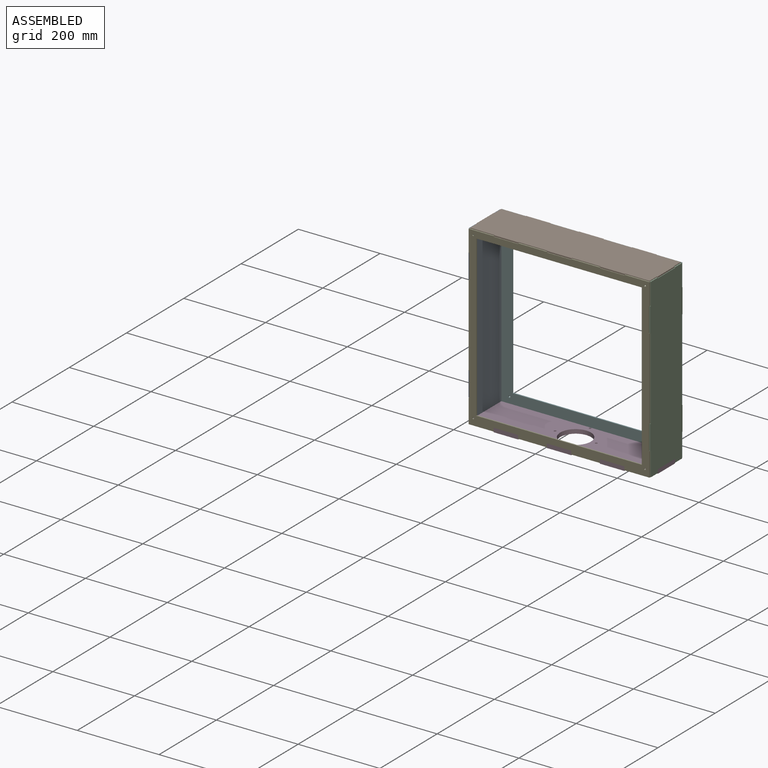
[diagram: assembled view]
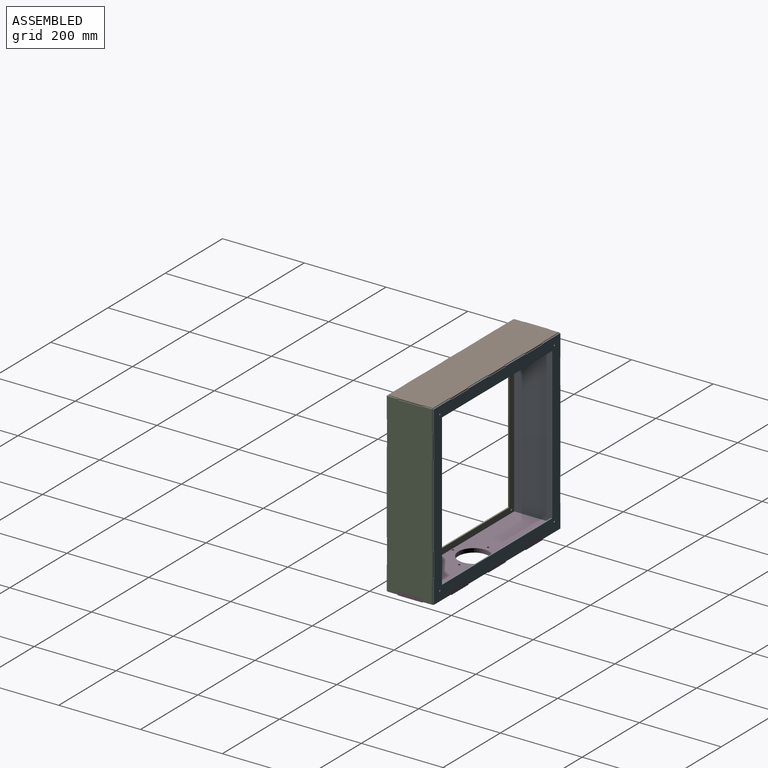
[diagram: assembled view, second angle]
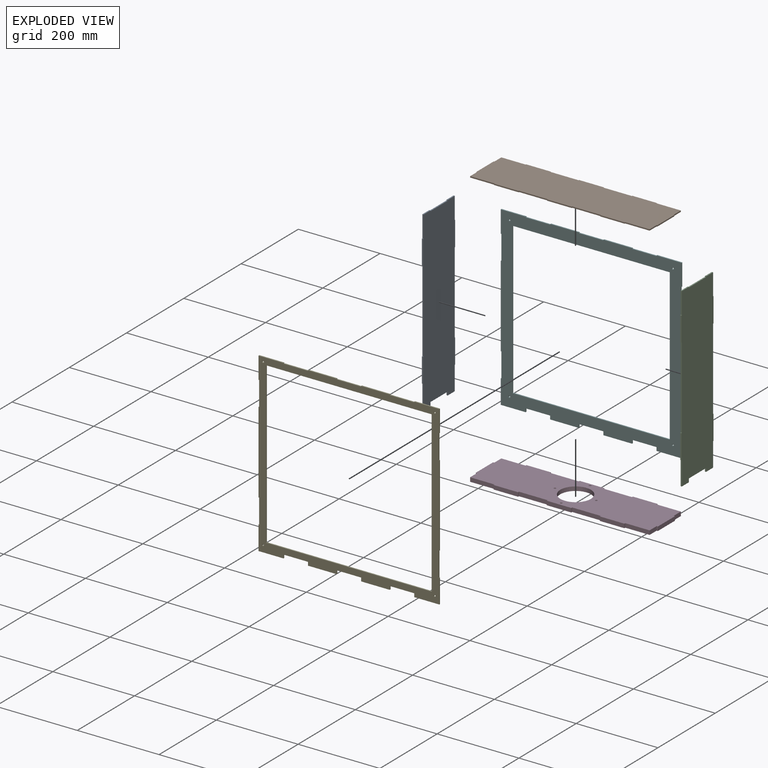
[diagram: exploded view]
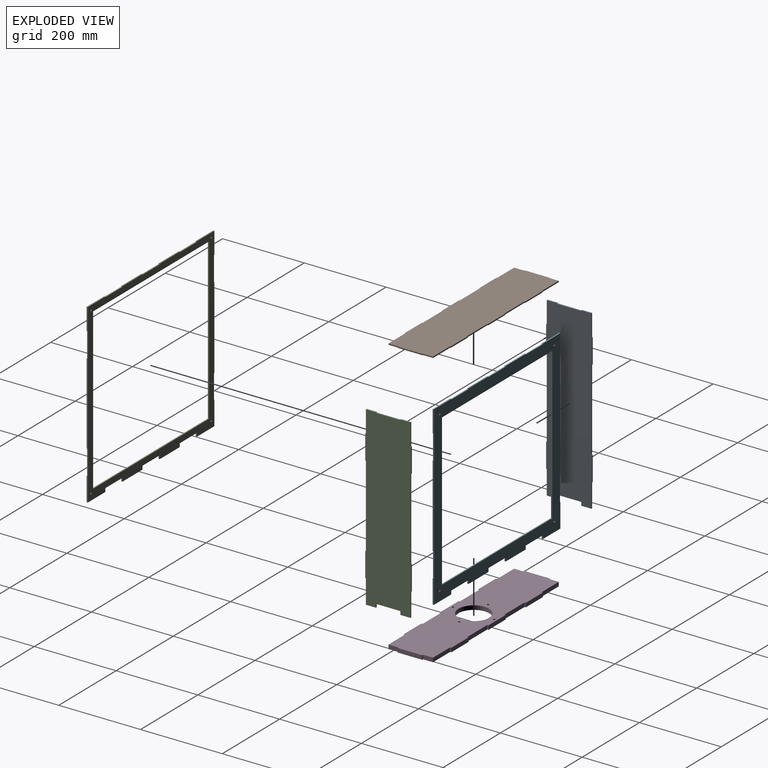
[diagram: exploded view, second angle]
ASSEMBLY  parts=6 mates=5
PART A: 30 faces, bbox 3x112x432 mm
  f0: plane 24.5x3mm, normal (0,0,-1), area 73.5mm2, adj f2,f3,f7,f27
  f1: plane 24.5x3mm, normal (0,0,1), area 73.5mm2, adj f2,f3,f19,f26
  f2: plane 432x112mm, normal (1,0,0), area 46848mm2, adj f0,f1,f4,f5,f6,f7,f8,f9
  f3: plane 432x112mm, normal (-1,0,0), area 46848mm2, adj f0,f1,f4,f5,f6,f7,f8,f9
  f4: plane 3x1.5mm, normal (0,0,1), area 4.5mm2, adj f2,f3,f5,f23
  f5: plane 60x3mm, normal (0,-1,0), area 180mm2, adj f2,f3,f4,f6
  f6: plane 3x1.5mm, normal (0,0,-1), area 4.5mm2, adj f2,f3,f5,f7
  f7: plane 58.5x3mm, normal (0,-1,0), area 175.5mm2, adj f0,f2,f3,f6
  f8: plane 24.5x3mm, normal (0,0,-1), area 73.5mm2, adj f2,f3,f9,f29
  f9: plane 58.5x3mm, normal (0,1,0), area 175.5mm2, adj f2,f3,f8,f10
  f10: plane 3x1.5mm, normal (0,0,-1), area 4.5mm2, adj f2,f3,f9,f11
  f11: plane 60x3mm, normal (0,1,0), area 180mm2, adj f2,f3,f10,f12
  f12: plane 3x1.5mm, normal (0,0,1), area 4.5mm2, adj f2,f3,f11,f13
  f13: plane 200x3mm, normal (0,1,0), area 600mm2, adj f2,f3,f12,f14
  f14: plane 3x1.5mm, normal (0,0,-1), area 4.5mm2, adj f2,f3,f13,f15
  f15: plane 60x3mm, normal (0,1,0), area 180mm2, adj f2,f3,f14,f16
  f16: plane 3x1.5mm, normal (0,0,1), area 4.5mm2, adj f2,f3,f15,f17
  f17: plane 53.5x3mm, normal (0,1,0), area 160.5mm2, adj f2,f3,f16,f18
  f18: plane 24.5x3mm, normal (0,0,1), area 73.5mm2, adj f2,f3,f17,f24
  f19: plane 53.5x3mm, normal (0,-1,0), area 160.5mm2, adj f1,f2,f3,f20
  f20: plane 3x1.5mm, normal (0,0,1), area 4.5mm2, adj f2,f3,f19,f21
  f21: plane 60x3mm, normal (0,-1,0), area 180mm2, adj f2,f3,f20,f22
  f22: plane 3x1.5mm, normal (0,0,-1), area 4.5mm2, adj f2,f3,f21,f23
  f23: plane 200x3mm, normal (0,-1,0), area 600mm2, adj f2,f3,f4,f22
  f24: plane 3x1.5mm, normal (0,-1,0), area 4.5mm2, adj f2,f3,f18,f25
  f25: plane 60x3mm, normal (0,0,1), area 180mm2, adj f2,f3,f24,f26
  f26: plane 3x1.5mm, normal (0,1,0), area 4.5mm2, adj f1,f2,f3,f25
  f27: plane 8.5x3mm, normal (0,1,0), area 25.5mm2, adj f0,f2,f3,f28
  f28: plane 60x3mm, normal (0,0,-1), area 180mm2, adj f2,f3,f27,f29
  f29: plane 8.5x3mm, normal (0,-1,0), area 25.5mm2, adj f2,f3,f8,f28
PART B: 38 faces, bbox 442x112x3 mm
  f0: plane 24.5x3mm, normal (1,0,0), area 73.5mm2, adj f9,f12,f13,f37
  f1: plane 24.5x3mm, normal (-1,0,0), area 73.5mm2, adj f7,f12,f13,f34
  f2: plane 70x3mm, normal (0,1,0), area 210mm2, adj f12,f13,f24,f30
  f3: plane 59.5x3mm, normal (0,1,0), area 178.5mm2, adj f8,f12,f13,f27
  f4: plane 70x3mm, normal (0,1,0), area 210mm2, adj f12,f13,f23,f28
  f5: plane 70x3mm, normal (0,-1,0), area 210mm2, adj f12,f13,f19,f20
  f6: plane 70x3mm, normal (0,-1,0), area 210mm2, adj f12,f13,f16,f17
  f7: plane 59.5x3mm, normal (0,-1,0), area 178.5mm2, adj f1,f12,f13,f14
  f8: plane 24.5x3mm, normal (-1,0,0), area 73.5mm2, adj f3,f12,f13,f32
  f9: plane 59.5x3mm, normal (0,-1,0), area 178.5mm2, adj f0,f12,f13,f22
  f10: plane 24.5x3mm, normal (1,0,0), area 73.5mm2, adj f11,f12,f13,f36
  f11: plane 59.5x3mm, normal (0,1,0), area 178.5mm2, adj f10,f12,f13,f31
  f12: plane 442x112mm, normal (0,0,1), area 48571mm2, adj f0,f1,f2,f3,f4,f5,f6,f7
  f13: plane 442x112mm, normal (0,0,-1), area 48571mm2, adj f0,f1,f2,f3,f4,f5,f6,f7
  f14: plane 3x1.5mm, normal (-1,0,0), area 4.5mm2, adj f7,f12,f13,f15
  f15: plane 60x3mm, normal (0,-1,0), area 180mm2, adj f12,f13,f14,f16
  f16: plane 3x1.5mm, normal (1,0,0), area 4.5mm2, adj f6,f12,f13,f15
  f17: plane 3x1.5mm, normal (-1,0,0), area 4.5mm2, adj f6,f12,f13,f18
  f18: plane 60x3mm, normal (0,-1,0), area 180mm2, adj f12,f13,f17,f19
  f19: plane 3x1.5mm, normal (1,0,0), area 4.5mm2, adj f5,f12,f13,f18
  f20: plane 3x1.5mm, normal (-1,0,0), area 4.5mm2, adj f5,f12,f13,f21
  f21: plane 60x3mm, normal (0,-1,0), area 180mm2, adj f12,f13,f20,f22
  f22: plane 3x1.5mm, normal (1,0,0), area 4.5mm2, adj f9,f12,f13,f21
  f23: plane 3x1.5mm, normal (-1,0,0), area 4.5mm2, adj f4,f12,f13,f25
  f24: plane 3x1.5mm, normal (1,0,0), area 4.5mm2, adj f2,f12,f13,f25
  f25: plane 60x3mm, normal (0,1,0), area 180mm2, adj f12,f13,f23,f24
  f26: plane 60x3mm, normal (0,1,0), area 180mm2, adj f12,f13,f27,f28
  f27: plane 3x1.5mm, normal (-1,0,0), area 4.5mm2, adj f3,f12,f13,f26
  f28: plane 3x1.5mm, normal (1,0,0), area 4.5mm2, adj f4,f12,f13,f26
  f29: plane 60x3mm, normal (0,1,0), area 180mm2, adj f12,f13,f30,f31
  f30: plane 3x1.5mm, normal (-1,0,0), area 4.5mm2, adj f2,f12,f13,f29
  f31: plane 3x1.5mm, normal (1,0,0), area 4.5mm2, adj f11,f12,f13,f29
  f32: plane 3x1.5mm, normal (0,1,0), area 4.5mm2, adj f8,f12,f13,f33
  f33: plane 60x3mm, normal (-1,0,0), area 180mm2, adj f12,f13,f32,f34
  f34: plane 3x1.5mm, normal (0,-1,0), area 4.5mm2, adj f1,f12,f13,f33
  f35: plane 60x3mm, normal (1,0,0), area 180mm2, adj f12,f13,f36,f37
  f36: plane 3x1.5mm, normal (0,1,0), area 4.5mm2, adj f10,f12,f13,f35
  f37: plane 3x1.5mm, normal (0,-1,0), area 4.5mm2, adj f0,f12,f13,f35
PART C: same geometry as A
PART D: 43 faces, bbox 445x115x10 mm
  f0: plane 24.5x10mm, normal (1,0,0), area 245mm2, adj f9,f12,f13,f42
  f1: plane 24.5x10mm, normal (-1,0,0), area 245mm2, adj f7,f12,f13,f39
  f2: plane 70x10mm, normal (0,1,0), area 700mm2, adj f12,f13,f29,f35
  f3: plane 59.5x10mm, normal (0,1,0), area 595mm2, adj f8,f12,f13,f32
  f4: plane 70x10mm, normal (0,1,0), area 700mm2, adj f12,f13,f28,f33
  f5: plane 70x10mm, normal (0,-1,0), area 700mm2, adj f12,f13,f24,f25
  f6: plane 70x10mm, normal (0,-1,0), area 700mm2, adj f12,f13,f21,f22
  f7: plane 59.5x10mm, normal (0,-1,0), area 595mm2, adj f1,f12,f13,f19
  f8: plane 24.5x10mm, normal (-1,0,0), area 245mm2, adj f3,f12,f13,f37
  f9: plane 59.5x10mm, normal (0,-1,0), area 595mm2, adj f0,f12,f13,f27
  f10: plane 24.5x10mm, normal (1,0,0), area 245mm2, adj f11,f12,f13,f41
  f11: plane 59.5x10mm, normal (0,1,0), area 595mm2, adj f10,f12,f13,f36
  f12: plane 445x115mm, normal (0,0,1), area 44791.4mm2, adj f0,f1,f2,f3,f4,f5,f6,f7
  f13: plane 445x115mm, normal (0,0,-1), area 44791.4mm2, adj f0,f1,f2,f3,f4,f5,f6,f7
  f14: cylinder r=37.5mm len=75mm, axis (0,0,-1), area 2356.2mm2, adj f12,f13
  f15: cylinder r=2.55mm len=10mm, axis (0,0,-1), area 160.2mm2, adj f12,f13
  f16: cylinder r=2.55mm len=10mm, axis (0,0,-1), area 160.2mm2, adj f12,f13
  f17: cylinder r=2.55mm len=10mm, axis (0,0,-1), area 160.2mm2, adj f12,f13
  f18: cylinder r=2.55mm len=10mm, axis (0,0,-1), area 160.2mm2, adj f12,f13
  f19: plane 10x3mm, normal (-1,0,0), area 30mm2, adj f7,f12,f13,f20
  f20: plane 60x10mm, normal (0,-1,0), area 600mm2, adj f12,f13,f19,f21
  f21: plane 10x3mm, normal (1,0,0), area 30mm2, adj f6,f12,f13,f20
  f22: plane 10x3mm, normal (-1,0,0), area 30mm2, adj f6,f12,f13,f23
  f23: plane 60x10mm, normal (0,-1,0), area 600mm2, adj f12,f13,f22,f24
  f24: plane 10x3mm, normal (1,0,0), area 30mm2, adj f5,f12,f13,f23
  f25: plane 10x3mm, normal (-1,0,0), area 30mm2, adj f5,f12,f13,f26
  f26: plane 60x10mm, normal (0,-1,0), area 600mm2, adj f12,f13,f25,f27
  f27: plane 10x3mm, normal (1,0,0), area 30mm2, adj f9,f12,f13,f26
  f28: plane 10x3mm, normal (-1,0,0), area 30mm2, adj f4,f12,f13,f30
  f29: plane 10x3mm, normal (1,0,0), area 30mm2, adj f2,f12,f13,f30
  f30: plane 60x10mm, normal (0,1,0), area 600mm2, adj f12,f13,f28,f29
  f31: plane 60x10mm, normal (0,1,0), area 600mm2, adj f12,f13,f32,f33
  f32: plane 10x3mm, normal (-1,0,0), area 30mm2, adj f3,f12,f13,f31
  f33: plane 10x3mm, normal (1,0,0), area 30mm2, adj f4,f12,f13,f31
  f34: plane 60x10mm, normal (0,1,0), area 600mm2, adj f12,f13,f35,f36
  f35: plane 10x3mm, normal (-1,0,0), area 30mm2, adj f2,f12,f13,f34
  f36: plane 10x3mm, normal (1,0,0), area 30mm2, adj f11,f12,f13,f34
  f37: plane 10x3mm, normal (0,1,0), area 30mm2, adj f8,f12,f13,f38
  f38: plane 60x10mm, normal (-1,0,0), area 600mm2, adj f12,f13,f37,f39
  f39: plane 10x3mm, normal (0,-1,0), area 30mm2, adj f1,f12,f13,f38
  f40: plane 60x10mm, normal (1,0,0), area 600mm2, adj f12,f13,f41,f42
  f41: plane 10x3mm, normal (0,1,0), area 30mm2, adj f10,f12,f13,f40
  f42: plane 10x3mm, normal (0,-1,0), area 30mm2, adj f0,f12,f13,f40
PART E: 54 faces, bbox 442x432x3 mm
  f0: plane 442x432mm, normal (0,0,1), area 29968.1mm2, adj f1,f2,f3,f4,f6,f7,f8,f9
  f1: plane 58.5x3mm, normal (-1,0,0), area 175.5mm2, adj f0,f5,f8,f50
  f2: plane 200x3mm, normal (-1,0,0), area 600mm2, adj f0,f5,f41,f48
  f3: plane 200x3mm, normal (1,0,0), area 600mm2, adj f0,f5,f44,f46
  f4: plane 58.5x3mm, normal (1,0,0), area 175.5mm2, adj f0,f5,f13,f43
  f5: plane 442x432mm, normal (0,0,-1), area 29968.1mm2, adj f1,f2,f3,f4,f6,f7,f8,f9
  f6: plane 70x3mm, normal (0,-1,0), area 210mm2, adj f0,f5,f33,f37
  f7: plane 70x3mm, normal (0,-1,0), area 210mm2, adj f0,f5,f25,f32
  f8: plane 61x3mm, normal (0,-1,0), area 183mm2, adj f0,f1,f5,f24
  f9: plane 70x3mm, normal (0,1,0), area 210mm2, adj f0,f5,f30,f36
  f10: plane 61x3mm, normal (0,1,0), area 183mm2, adj f0,f5,f12,f31
  f11: plane 70x3mm, normal (0,1,0), area 210mm2, adj f0,f5,f28,f35
  f12: plane 53.5x3mm, normal (-1,0,0), area 160.5mm2, adj f0,f5,f10,f39
  f13: plane 61x3mm, normal (0,-1,0), area 183mm2, adj f0,f4,f5,f38
  f14: plane 53.5x3mm, normal (1,0,0), area 160.5mm2, adj f0,f5,f21,f47
  f15: plane 392x3mm, normal (1,0,0), area 1176mm2, adj f0,f5,f16,f22
  f16: plane 405x3mm, normal (0,-1,0), area 1215mm2, adj f0,f5,f15,f17
  f17: plane 392x3mm, normal (-1,0,0), area 1176mm2, adj f0,f5,f16,f22
  f18: cylinder r=2.1mm len=4.2mm, axis (0,0,-1), area 39.6mm2, adj f0,f5
  f19: cylinder r=2.1mm len=4.2mm, axis (0,0,-1), area 39.6mm2, adj f0,f5
  f20: cylinder r=2.1mm len=4.2mm, axis (0,0,-1), area 39.6mm2, adj f0,f5
  f21: plane 61x3mm, normal (0,1,0), area 183mm2, adj f0,f5,f14,f27
  f22: plane 405x3mm, normal (0,1,0), area 1215mm2, adj f0,f5,f15,f17
  f23: cylinder r=2.1mm len=4.2mm, axis (0,0,-1), area 39.6mm2, adj f0,f5
  f24: plane 8.5x3mm, normal (1,0,0), area 25.5mm2, adj f0,f5,f8,f53
  f25: plane 8.5x3mm, normal (-1,0,0), area 25.5mm2, adj f0,f5,f7,f53
  f26: plane 60x3mm, normal (0,1,0), area 180mm2, adj f0,f5,f27,f28
  f27: plane 3x1.5mm, normal (-1,0,0), area 4.5mm2, adj f0,f5,f21,f26
  f28: plane 3x1.5mm, normal (1,0,0), area 4.5mm2, adj f0,f5,f11,f26
  f29: plane 60x3mm, normal (0,1,0), area 180mm2, adj f0,f5,f30,f31
  f30: plane 3x1.5mm, normal (-1,0,0), area 4.5mm2, adj f0,f5,f9,f29
  f31: plane 3x1.5mm, normal (1,0,0), area 4.5mm2, adj f0,f5,f10,f29
  f32: plane 8.5x3mm, normal (1,0,0), area 25.5mm2, adj f0,f5,f7,f52
  f33: plane 8.5x3mm, normal (-1,0,0), area 25.5mm2, adj f0,f5,f6,f52
  f34: plane 60x3mm, normal (0,1,0), area 180mm2, adj f0,f5,f35,f36
  f35: plane 3x1.5mm, normal (-1,0,0), area 4.5mm2, adj f0,f5,f11,f34
  f36: plane 3x1.5mm, normal (1,0,0), area 4.5mm2, adj f0,f5,f9,f34
  f37: plane 8.5x3mm, normal (1,0,0), area 25.5mm2, adj f0,f5,f6,f51
  f38: plane 8.5x3mm, normal (-1,0,0), area 25.5mm2, adj f0,f5,f13,f51
  f39: plane 3x1.5mm, normal (0,-1,0), area 4.5mm2, adj f0,f5,f12,f40
  f40: plane 60x3mm, normal (-1,0,0), area 180mm2, adj f0,f5,f39,f41
  f41: plane 3x1.5mm, normal (0,1,0), area 4.5mm2, adj f0,f2,f5,f40
  f42: plane 60x3mm, normal (1,0,0), area 180mm2, adj f0,f5,f43,f44
  f43: plane 3x1.5mm, normal (0,1,0), area 4.5mm2, adj f0,f4,f5,f42
  f44: plane 3x1.5mm, normal (0,-1,0), area 4.5mm2, adj f0,f3,f5,f42
  f45: plane 60x3mm, normal (1,0,0), area 180mm2, adj f0,f5,f46,f47
  f46: plane 3x1.5mm, normal (0,1,0), area 4.5mm2, adj f0,f3,f5,f45
  f47: plane 3x1.5mm, normal (0,-1,0), area 4.5mm2, adj f0,f5,f14,f45
  f48: plane 3x1.5mm, normal (0,-1,0), area 4.5mm2, adj f0,f2,f5,f49
  f49: plane 60x3mm, normal (-1,0,0), area 180mm2, adj f0,f5,f48,f50
  f50: plane 3x1.5mm, normal (0,1,0), area 4.5mm2, adj f0,f1,f5,f49
  f51: plane 60x3mm, normal (0,-1,0), area 180mm2, adj f0,f5,f37,f38
  f52: plane 60x3mm, normal (0,-1,0), area 180mm2, adj f0,f5,f32,f33
  f53: plane 60x3mm, normal (0,-1,0), area 180mm2, adj f0,f5,f24,f25
PART F: 54 faces, bbox 442x432x3 mm
  f0: plane 442x432mm, normal (0,0,1), area 46278.1mm2, adj f1,f2,f3,f4,f6,f7,f8,f9
  f1: plane 58.5x3mm, normal (-1,0,0), area 175.5mm2, adj f0,f5,f8,f50
  f2: plane 200x3mm, normal (-1,0,0), area 600mm2, adj f0,f5,f41,f48
  f3: plane 200x3mm, normal (1,0,0), area 600mm2, adj f0,f5,f44,f46
  f4: plane 58.5x3mm, normal (1,0,0), area 175.5mm2, adj f0,f5,f13,f43
  f5: plane 442x432mm, normal (0,0,-1), area 46278.1mm2, adj f1,f2,f3,f4,f6,f7,f8,f9
  f6: plane 70x3mm, normal (0,-1,0), area 210mm2, adj f0,f5,f33,f37
  f7: plane 70x3mm, normal (0,-1,0), area 210mm2, adj f0,f5,f25,f32
  f8: plane 61x3mm, normal (0,-1,0), area 183mm2, adj f0,f1,f5,f24
  f9: plane 70x3mm, normal (0,1,0), area 210mm2, adj f0,f5,f30,f36
  f10: plane 61x3mm, normal (0,1,0), area 183mm2, adj f0,f5,f12,f31
  f11: plane 70x3mm, normal (0,1,0), area 210mm2, adj f0,f5,f28,f35
  f12: plane 53.5x3mm, normal (-1,0,0), area 160.5mm2, adj f0,f5,f10,f39
  f13: plane 61x3mm, normal (0,-1,0), area 183mm2, adj f0,f4,f5,f38
  f14: plane 53.5x3mm, normal (1,0,0), area 160.5mm2, adj f0,f5,f21,f47
  f15: plane 370x3mm, normal (1,0,0), area 1110mm2, adj f0,f5,f16,f22
  f16: plane 385x3mm, normal (0,-1,0), area 1155mm2, adj f0,f5,f15,f17
  f17: plane 370x3mm, normal (-1,0,0), area 1110mm2, adj f0,f5,f16,f22
  f18: cylinder r=2.1mm len=4.2mm, axis (0,0,-1), area 39.6mm2, adj f0,f5
  f19: cylinder r=2.1mm len=4.2mm, axis (0,0,-1), area 39.6mm2, adj f0,f5
  f20: cylinder r=2.1mm len=4.2mm, axis (0,0,-1), area 39.6mm2, adj f0,f5
  f21: plane 61x3mm, normal (0,1,0), area 183mm2, adj f0,f5,f14,f27
  f22: plane 385x3mm, normal (0,1,0), area 1155mm2, adj f0,f5,f15,f17
  f23: cylinder r=2.1mm len=4.2mm, axis (0,0,-1), area 39.6mm2, adj f0,f5
  f24: plane 8.5x3mm, normal (1,0,0), area 25.5mm2, adj f0,f5,f8,f53
  f25: plane 8.5x3mm, normal (-1,0,0), area 25.5mm2, adj f0,f5,f7,f53
  f26: plane 60x3mm, normal (0,1,0), area 180mm2, adj f0,f5,f27,f28
  f27: plane 3x1.5mm, normal (-1,0,0), area 4.5mm2, adj f0,f5,f21,f26
  f28: plane 3x1.5mm, normal (1,0,0), area 4.5mm2, adj f0,f5,f11,f26
  f29: plane 60x3mm, normal (0,1,0), area 180mm2, adj f0,f5,f30,f31
  f30: plane 3x1.5mm, normal (-1,0,0), area 4.5mm2, adj f0,f5,f9,f29
  f31: plane 3x1.5mm, normal (1,0,0), area 4.5mm2, adj f0,f5,f10,f29
  f32: plane 8.5x3mm, normal (1,0,0), area 25.5mm2, adj f0,f5,f7,f52
  f33: plane 8.5x3mm, normal (-1,0,0), area 25.5mm2, adj f0,f5,f6,f52
  f34: plane 60x3mm, normal (0,1,0), area 180mm2, adj f0,f5,f35,f36
  f35: plane 3x1.5mm, normal (-1,0,0), area 4.5mm2, adj f0,f5,f11,f34
  f36: plane 3x1.5mm, normal (1,0,0), area 4.5mm2, adj f0,f5,f9,f34
  f37: plane 8.5x3mm, normal (1,0,0), area 25.5mm2, adj f0,f5,f6,f51
  f38: plane 8.5x3mm, normal (-1,0,0), area 25.5mm2, adj f0,f5,f13,f51
  f39: plane 3x1.5mm, normal (0,-1,0), area 4.5mm2, adj f0,f5,f12,f40
  f40: plane 60x3mm, normal (-1,0,0), area 180mm2, adj f0,f5,f39,f41
  f41: plane 3x1.5mm, normal (0,1,0), area 4.5mm2, adj f0,f2,f5,f40
  f42: plane 60x3mm, normal (1,0,0), area 180mm2, adj f0,f5,f43,f44
  f43: plane 3x1.5mm, normal (0,1,0), area 4.5mm2, adj f0,f4,f5,f42
  f44: plane 3x1.5mm, normal (0,-1,0), area 4.5mm2, adj f0,f3,f5,f42
  f45: plane 60x3mm, normal (1,0,0), area 180mm2, adj f0,f5,f46,f47
  f46: plane 3x1.5mm, normal (0,1,0), area 4.5mm2, adj f0,f3,f5,f45
  f47: plane 3x1.5mm, normal (0,-1,0), area 4.5mm2, adj f0,f5,f14,f45
  f48: plane 3x1.5mm, normal (0,-1,0), area 4.5mm2, adj f0,f2,f5,f49
  f49: plane 60x3mm, normal (-1,0,0), area 180mm2, adj f0,f5,f48,f50
  f50: plane 3x1.5mm, normal (0,1,0), area 4.5mm2, adj f0,f1,f5,f49
  f51: plane 60x3mm, normal (0,-1,0), area 180mm2, adj f0,f5,f37,f38
  f52: plane 60x3mm, normal (0,-1,0), area 180mm2, adj f0,f5,f32,f33
  f53: plane 60x3mm, normal (0,-1,0), area 180mm2, adj f0,f5,f24,f25
PLACE A t=(-222.5,54.5,217.5)mm
PLACE B t=(0,0,432)mm
PLACE C t=(219.5,54.5,217.5)mm
PLACE D at identity fixed
PLACE E rot(axis=(1,0,0),90deg) t=(0,0,220)mm
PLACE F rot(axis=(1,0,0),90deg) t=(0,112,220)mm
MATE fastened D.f12 <-> F.f52  axis (0,0,1) through (0,112,10)mm
MATE fastened D.f40 <-> C.f2  axis (1,0,0) through (222.5,54.5,10)mm
MATE fastened B.f0 <-> C.f3  axis (1,0,0) through (219.5,24.5,432)mm
MATE fastened D.f23 <-> E.f0  axis (0,-1,0) through (0,-3,10)mm
MATE fastened D.f38 <-> A.f3  axis (-1,0,0) through (-222.5,54.5,10)mm
